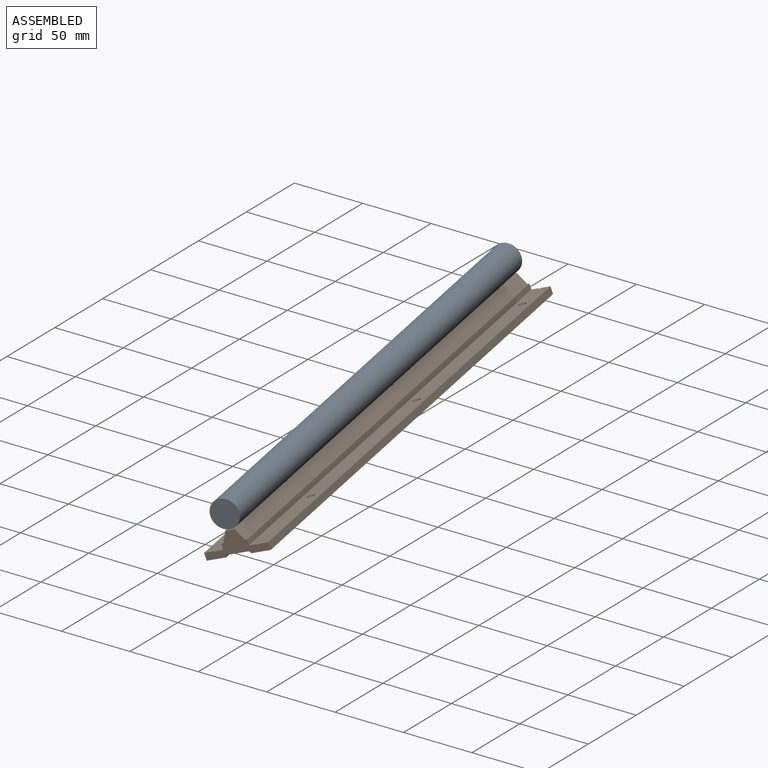
[diagram: assembled view]
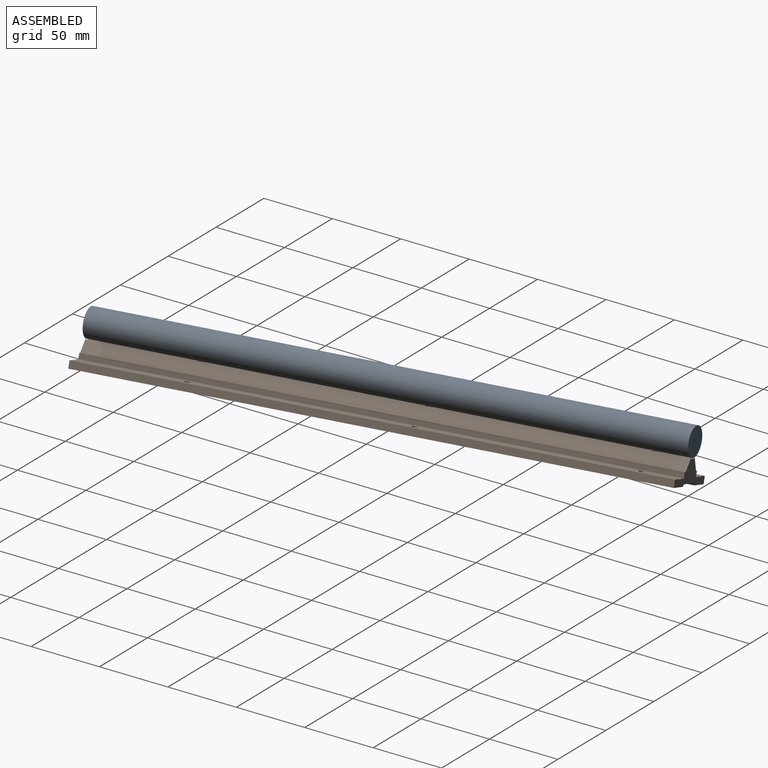
[diagram: assembled view, second angle]
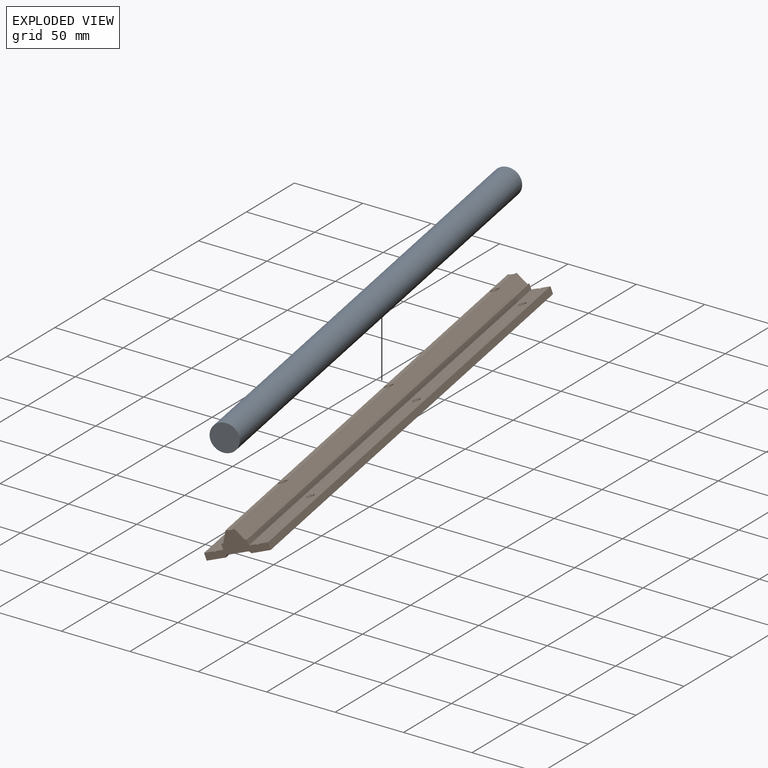
[diagram: exploded view]
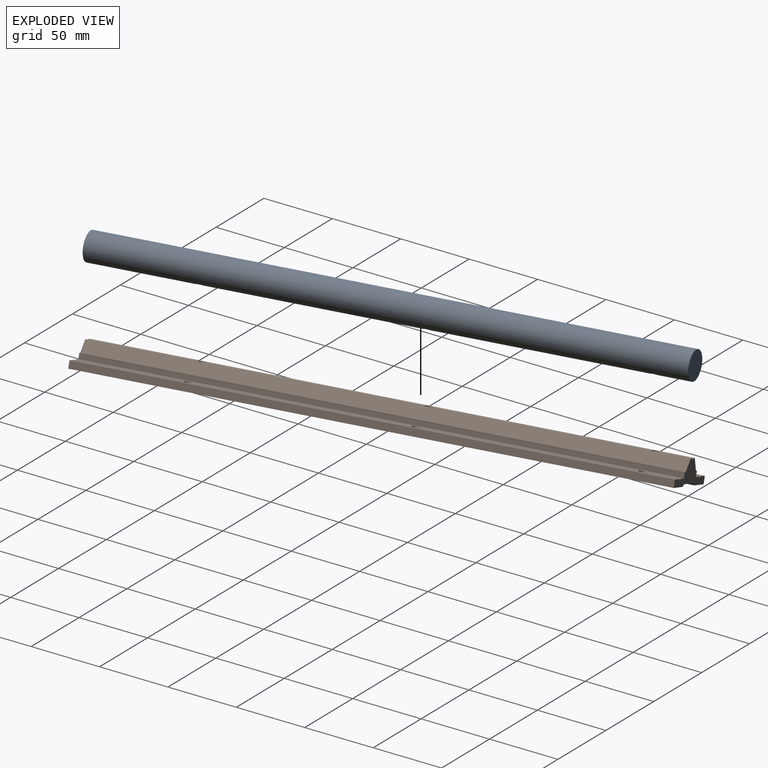
[diagram: exploded view, second angle]
ASSEMBLY  parts=2 mates=2
PART A: 9 faces, bbox 20x400x20 mm
  f0: cylinder r=10mm len=400mm, axis (0,1,0), area 25046.9mm2, adj f1,f2,f3,f5,f7
  f1: plane 20x20mm, normal (0,-1,0), area 314.2mm2, adj f0
  f2: plane 20x20mm, normal (0,1,0), area 314.2mm2, adj f0
  f3: cylinder r=3mm len=10mm, axis (0,0,1), area 184.2mm2, adj f0,f4
  f4: plane 6x6mm, normal (0,0,-1), area 28.3mm2, adj f3
  f5: cylinder r=3mm len=10mm, axis (0,0,1), area 184.2mm2, adj f0,f6
  f6: plane 6x6mm, normal (0,0,-1), area 28.3mm2, adj f5
  f7: cylinder r=3mm len=10mm, axis (0,0,1), area 184.2mm2, adj f0,f8
  f8: plane 6x6mm, normal (0,0,-1), area 28.3mm2, adj f7
PART B: 43 faces, bbox 45x400x17 mm
  f0: cylinder r=3mm len=9.51mm, axis (0,0,-1), area 175mm2, adj f22,f41
  f1: cylinder r=3mm len=9.51mm, axis (0,0,-1), area 175mm2, adj f22,f39
  f2: cylinder r=3mm len=9.51mm, axis (0,0,-1), area 175mm2, adj f22,f37
  f3: plane 400x6.7mm, normal (0,0,1), area 2657.9mm2, adj f4,f5,f6,f7,f18,f29,f30,f34
  f4: cylinder r=0.78mm len=144.74mm, axis (0,-1,0), area 284.2mm2, adj f3,f8,f35,f36
  f5: cylinder r=0.78mm len=22.37mm, axis (0,-1,0), area 43.8mm2, adj f3,f8,f29,f36
  f6: cylinder r=0.78mm len=144.74mm, axis (0,-1,0), area 284.2mm2, adj f3,f8,f34,f35
  f7: cylinder r=0.78mm len=72.37mm, axis (0,-1,0), area 142.1mm2, adj f3,f8,f30,f34
  f8: plane 400x5.21mm, normal (0,0,1), area 2061.2mm2, adj f4,f5,f6,f7,f19,f29,f30,f34
  f9: cylinder r=0.78mm len=72.37mm, axis (0,-1,0), area 142.1mm2, adj f26,f28,f30,f33
  f10: cylinder r=0.78mm len=144.74mm, axis (0,-1,0), area 284.2mm2, adj f26,f28,f32,f33
  f11: cylinder r=0.78mm len=144.74mm, axis (0,-1,0), area 284.2mm2, adj f26,f28,f31,f32
  f12: plane 400x5.11mm, normal (-1,0,0), area 2044.8mm2, adj f13,f28,f29,f30
  f13: plane 400x13.51mm, normal (0,0,-1), area 5332.2mm2, adj f12,f14,f29,f30,f31,f32,f33
  f14: plane 400x1.48mm, normal (0.74,0,-0.68), area 804.2mm2, adj f13,f15,f29,f30
  f15: plane 400x15.24mm, normal (0,0,-1), area 5859.7mm2, adj f14,f16,f29,f30,f38,f40,f42
  f16: plane 400x1.48mm, normal (-0.74,0,-0.68), area 804.2mm2, adj f15,f17,f29,f30
  f17: plane 400x13.51mm, normal (0,0,-1), area 5332.2mm2, adj f16,f18,f29,f30,f34,f35,f36
  f18: plane 400x5.11mm, normal (1,0,0), area 2044.8mm2, adj f3,f17,f29,f30
  f19: plane 400x3.89mm, normal (1,0,0), area 1556.9mm2, adj f8,f20,f29,f30
  f20: plane 400x1.43mm, normal (0,0,1), area 571.9mm2, adj f19,f21,f29,f30
  f21: plane 400x8mm, normal (0.87,0,0.5), area 3695mm2, adj f20,f22,f29,f30
  f22: cylinder r=10.01mm len=400mm, axis (0,-1,0), area 2384.5mm2, adj f0,f1,f2,f21,f23,f29,f30
  f23: plane 400x8mm, normal (-0.87,0,0.5), area 3695mm2, adj f22,f24,f29,f30
  f24: plane 400x1.43mm, normal (0,0,1), area 571.9mm2, adj f23,f25,f29,f30
  f25: plane 400x3.89mm, normal (-1,0,0), area 1556.9mm2, adj f24,f26,f29,f30
  f26: plane 400x5.21mm, normal (0,0,1), area 2061.2mm2, adj f9,f10,f11,f25,f27,f29,f30,f31
  f27: cylinder r=0.78mm len=22.37mm, axis (0,-1,0), area 43.8mm2, adj f26,f28,f29,f31
  f28: plane 400x6.7mm, normal (0,0,1), area 2657.9mm2, adj f9,f10,f11,f12,f27,f29,f30,f31
  f29: plane 44.98x17mm, normal (0,1,0), area 358.6mm2, adj f3,f5,f8,f12,f13,f14,f15,f16
  f30: plane 44.98x17mm, normal (0,-1,0), area 358.6mm2, adj f3,f7,f8,f9,f12,f13,f14,f15
  f31: cylinder r=2.75mm len=5.5mm, axis (0,0,1), area 87.1mm2, adj f11,f13,f26,f27,f28
  f32: cylinder r=2.75mm len=5.5mm, axis (0,0,1), area 87.1mm2, adj f10,f11,f13,f26,f28
  f33: cylinder r=2.75mm len=5.5mm, axis (0,0,1), area 87.1mm2, adj f9,f10,f13,f26,f28
  f34: cylinder r=2.75mm len=5.5mm, axis (0,0,1), area 87.1mm2, adj f3,f6,f7,f8,f17
  f35: cylinder r=2.75mm len=5.5mm, axis (0,0,1), area 87.1mm2, adj f3,f4,f6,f8,f17
  f36: cylinder r=2.75mm len=5.5mm, axis (0,0,1), area 87.1mm2, adj f3,f4,f5,f8,f17
  f37: plane 10x10mm, normal (0,0,-1), area 50.3mm2, adj f2,f38
  f38: cylinder r=5mm len=10mm, axis (0,0,-1), area 188.5mm2, adj f15,f37
  f39: plane 10x10mm, normal (0,0,-1), area 50.3mm2, adj f1,f40
  f40: cylinder r=5mm len=10mm, axis (0,0,-1), area 188.5mm2, adj f15,f39
  f41: plane 10x10mm, normal (0,0,-1), area 50.3mm2, adj f0,f42
  f42: cylinder r=5mm len=10mm, axis (0,0,-1), area 188.5mm2, adj f15,f41
PLACE A rot(axis=(0.17,0.02,-0.98),170.2deg) t=(-292.41,-61.91,-115.42)mm
PLACE B rot(axis=(0.08,-0.89,0.44),22.3deg) t=(-289,-61.31,-124.92)mm
MATE cylindrical B.f2 <-> A.f7  axis (0.34,0.06,-0.94) through (-300.43,12.83,-129.38)mm
MATE fastened B.f0 <-> A.f3  axis (0.34,0.06,-0.94) through (-354.13,307.99,-124.88)mm
